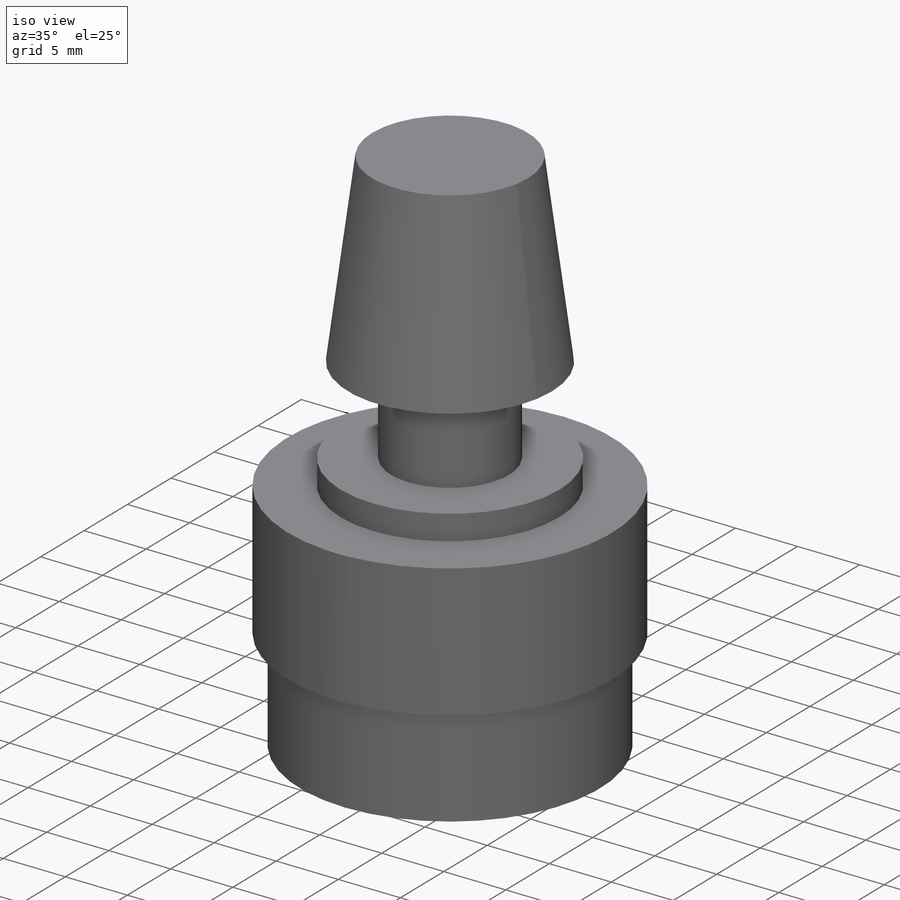
[diagram: iso view]
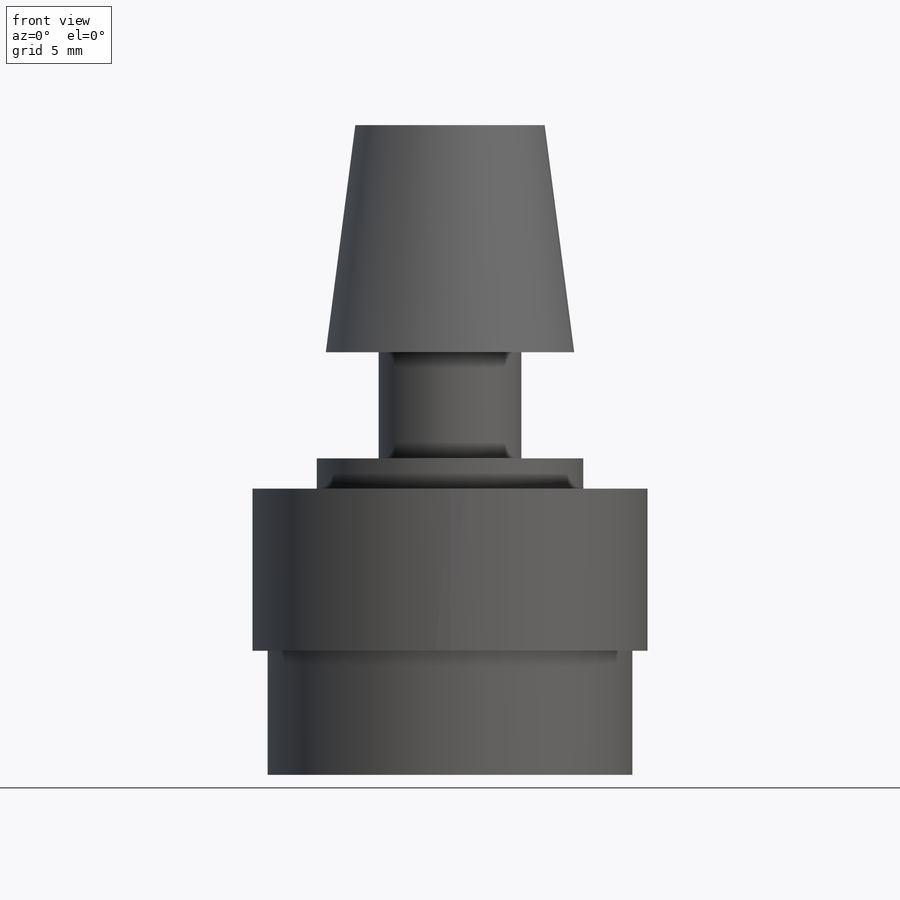
[diagram: front view]
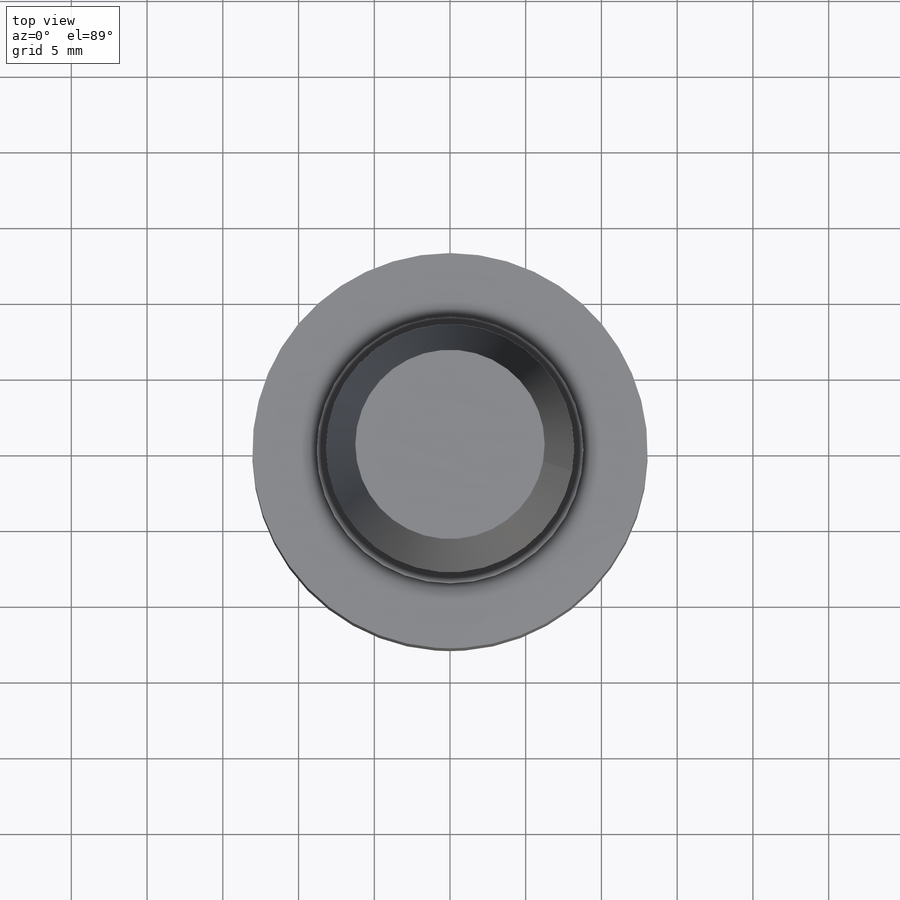
[diagram: top view]
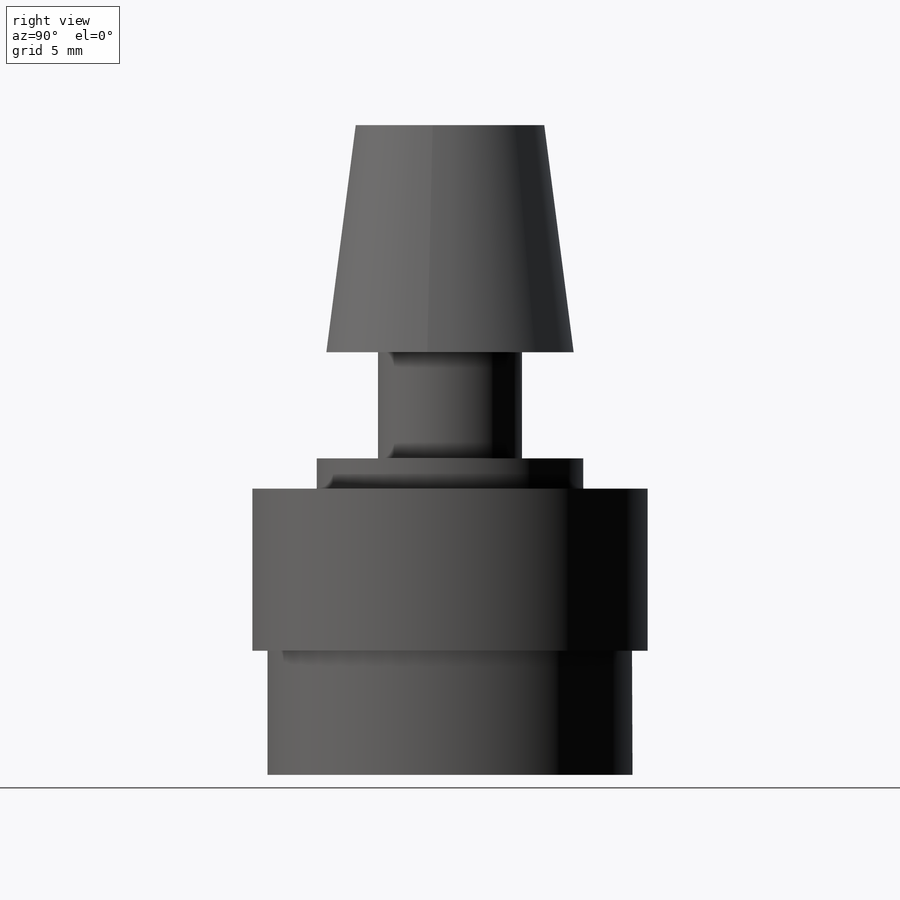
[diagram: right view]
SOLIDWORKS PART (.sldprt)
format: sldprt  version: not decoded by parser v0  size: 162,816 bytes
history: native  units: mm
features: sketch x5, extrude x4, plane x3, material x1, revolve x1 (+10 scaffold rows collapsed)
feature tree (24):
  scaffold x10  (default folders/planes/origin — collapsed)
  material  "Matériau <non spécifié>"
  plane  "Plan de face"
  plane  "Plan de dessus"
  plane  "Plan de droite"
  sketch  "Esquisse1"  dims[D1=26.1mm]
  extrude  "Boss.-Extru.1"  Depth=10.7mm
  sketch  "Esquisse2"  dims[D1=17.6mm]
  extrude  "Boss.-Extru.2"  Depth=2mm
  sketch  "Esquisse3"  dims[D1=9.5mm]
  extrude  "Boss.-Extru.3"  Depth=7mm
  sketch  "Esquisse5"  dims[c1.D1=~20.919167mm c1.D2=~22.919167mm c2.D1=1.0mm c2.D2=0.5mm c3.D1=1.0mm c3.D2=1.0mm]
  extrude  "Boss.-Extru.5"  Depth=8.2mm
  sketch  "Esquisse6"  dims[c1.D1=8.2mm c1.D2=6.25mm c1.D3=~12.627511mm c2.D3=90.0deg c2.D4=15.0mm]
  revolve  "Révolution1"  Angle=360deg
decode coverage: 10 of 10 modeling features carry decoded parameters
note: ~ marks probable driven/reference dimensions
note: suppression state not decoded; provenance and decode notes live in map.json
